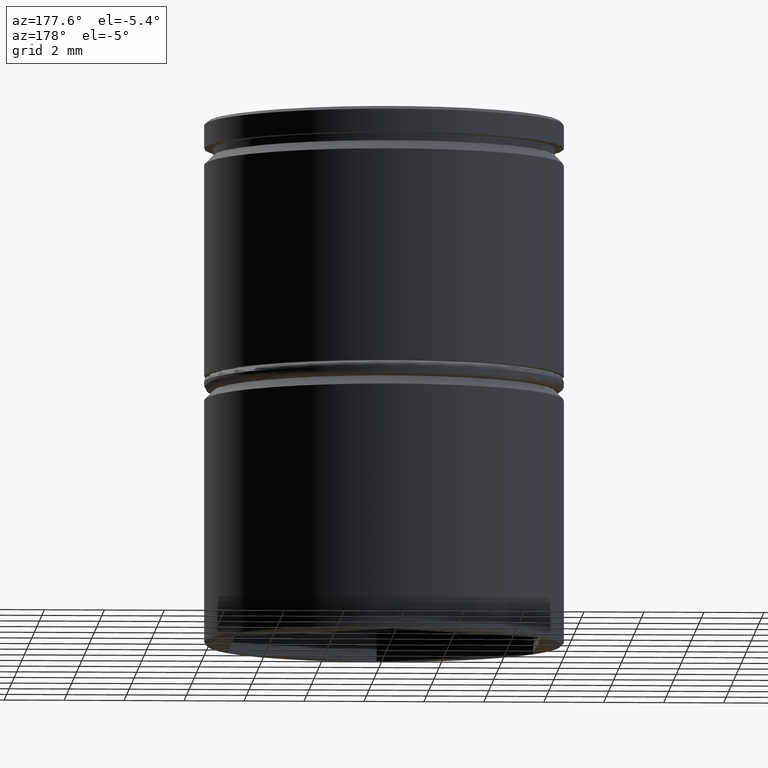
[diagram: clean part render]
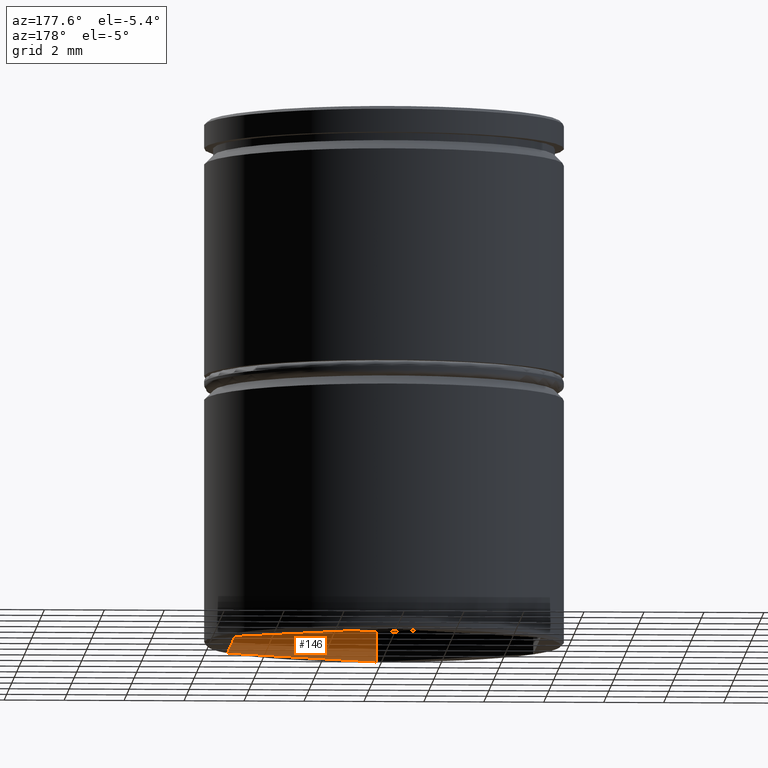
[diagram: same view with one face highlighted and labeled with its STEP entity id]
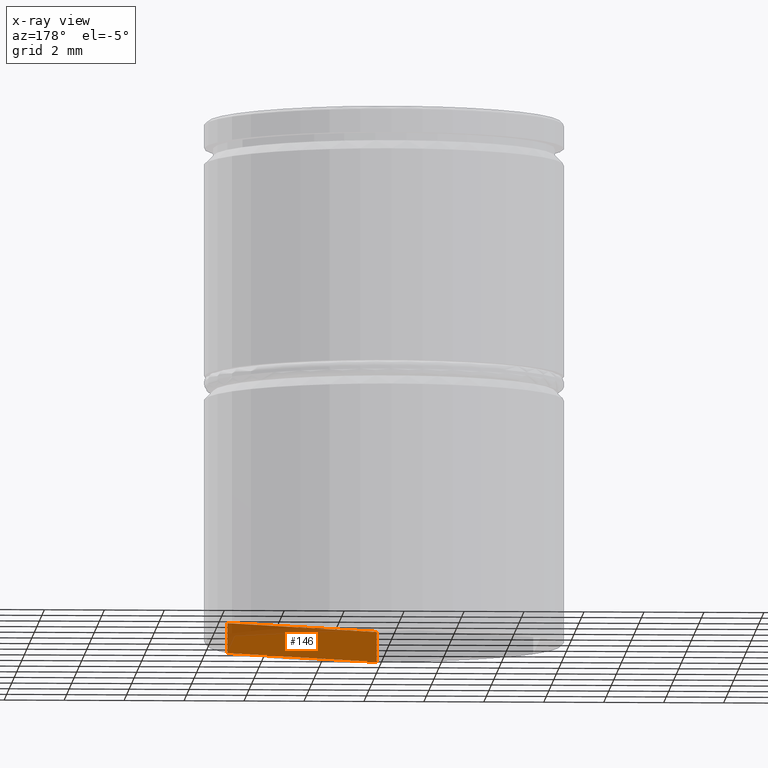
[diagram: x-ray of the same camera — body ghosted, the highlighted face saturated]
A machine part, auxiliary view. The second image highlights one B-rep face of the part: STEP entity #146.
The next image is the same camera in x-ray: the body ghosted, the highlighted face saturated — about 20% of this face is hidden behind the body in this view.
In plain terms, the highlighted planar face has unit normal (0.5, -0.866, 0).
Its self-contained STEP definition (entity closure, byte-faithful):
#9 = VERTEX_POINT ( 'NONE', #303 ) ;
#10 = PLANE ( 'NONE',  #848 ) ;
#15 = EDGE_CURVE ( 'NONE', #9, #772, #148, .T. ) ;
#16 = VECTOR ( 'NONE', #928, 1000.000000000000000 ) ;
#19 = DIRECTION ( 'NONE',  ( -0.8660254037844387076, -0.4999999999999998890, 0.000000000000000000 ) ) ;
#93 = DIRECTION ( 'NONE',  ( -0.000000000000000000, -0.000000000000000000, -1.000000000000000000 ) ) ;
#116 = ORIENTED_EDGE ( 'NONE', *, *, #317, .F. ) ;
#146 = ADVANCED_FACE ( 'NONE', ( #897 ), #10, .F. ) ;
#148 = LINE ( 'NONE', #381, #16 ) ;
#174 = LINE ( 'NONE', #487, #632 ) ;
#194 = VECTOR ( 'NONE', #370, 1000.000000000000114 ) ;
#228 = VECTOR ( 'NONE', #19, 1000.000000000000114 ) ;
#267 = ORIENTED_EDGE ( 'NONE', *, *, #15, .T. ) ;
#303 = CARTESIAN_POINT ( 'NONE',  ( 5.099999999999999645, -2.944486372867090918, -16.50000000000000000 ) ) ;
#317 = EDGE_CURVE ( 'NONE', #355, #820, #174, .T. ) ;
#355 = VERTEX_POINT ( 'NONE', #805 ) ;
#370 = DIRECTION ( 'NONE',  ( -0.8660254037844387076, -0.4999999999999998890, 0.000000000000000000 ) ) ;
#381 = CARTESIAN_POINT ( 'NONE',  ( 5.099999999999999645, -2.944486372867090918, -16.50000000000000000 ) ) ;
#397 = CARTESIAN_POINT ( 'NONE',  ( 5.099999999999999645, -2.944486372867090918, -17.50000000000000000 ) ) ;
#430 = EDGE_CURVE ( 'NONE', #9, #355, #600, .T. ) ;
#467 = EDGE_CURVE ( 'NONE', #772, #820, #822, .T. ) ;
#473 = ORIENTED_EDGE ( 'NONE', *, *, #430, .F. ) ;
#487 = CARTESIAN_POINT ( 'NONE',  ( -8.646952822150503169E-16, -5.888972745734181835, -16.50000000000000000 ) ) ;
#512 = ORIENTED_EDGE ( 'NONE', *, *, #467, .T. ) ;
#517 = DIRECTION ( 'NONE',  ( 0.8660254037844387076, 0.4999999999999998335, 0.000000000000000000 ) ) ;
#600 = LINE ( 'NONE', #742, #194 ) ;
#632 = VECTOR ( 'NONE', #93, 1000.000000000000000 ) ;
#740 = EDGE_LOOP ( 'NONE', ( #512, #116, #473, #267 ) ) ;
#742 = CARTESIAN_POINT ( 'NONE',  ( 5.099999999999999645, -2.944486372867090918, -16.50000000000000000 ) ) ;
#772 = VERTEX_POINT ( 'NONE', #397 ) ;
#783 = CARTESIAN_POINT ( 'NONE',  ( -8.646952822150503169E-16, -5.888972745734181835, -17.50000000000000000 ) ) ;
#805 = CARTESIAN_POINT ( 'NONE',  ( -8.646952822150503169E-16, -5.888972745734181835, -16.50000000000000000 ) ) ;
#807 = DIRECTION ( 'NONE',  ( 0.4999999999999998335, -0.8660254037844387076, 0.000000000000000000 ) ) ;
#820 = VERTEX_POINT ( 'NONE', #783 ) ;
#822 = LINE ( 'NONE', #914, #228 ) ;
#848 = AXIS2_PLACEMENT_3D ( 'NONE', #883, #807, #517 ) ;
#883 = CARTESIAN_POINT ( 'NONE',  ( 5.099999999999999645, -2.944486372867090918, -16.50000000000000000 ) ) ;
#897 = FACE_OUTER_BOUND ( 'NONE', #740, .T. ) ;
#914 = CARTESIAN_POINT ( 'NONE',  ( 5.099999999999999645, -2.944486372867090918, -17.50000000000000000 ) ) ;
#928 = DIRECTION ( 'NONE',  ( -0.000000000000000000, -0.000000000000000000, -1.000000000000000000 ) ) ;